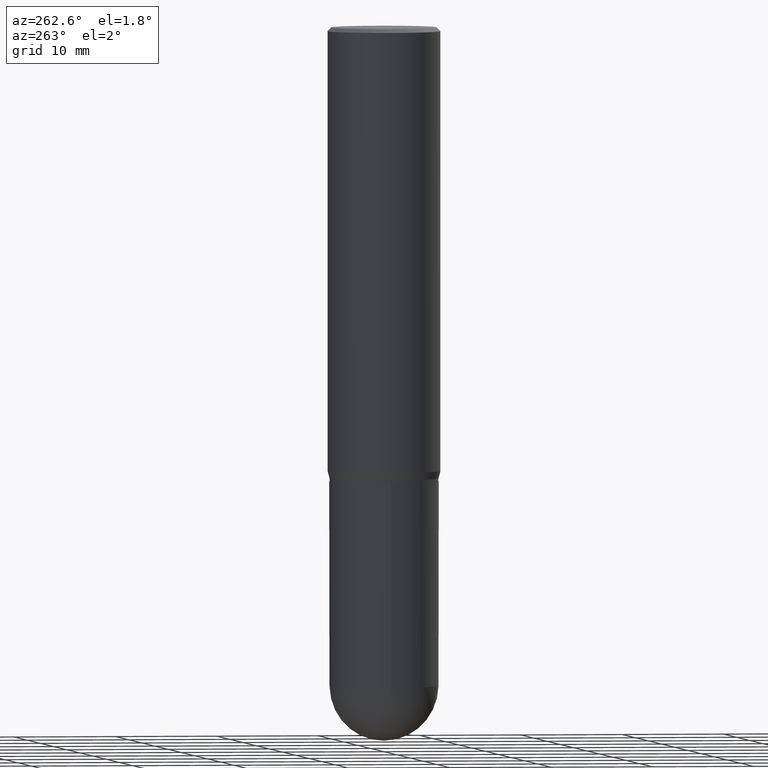
[diagram: clean part render]
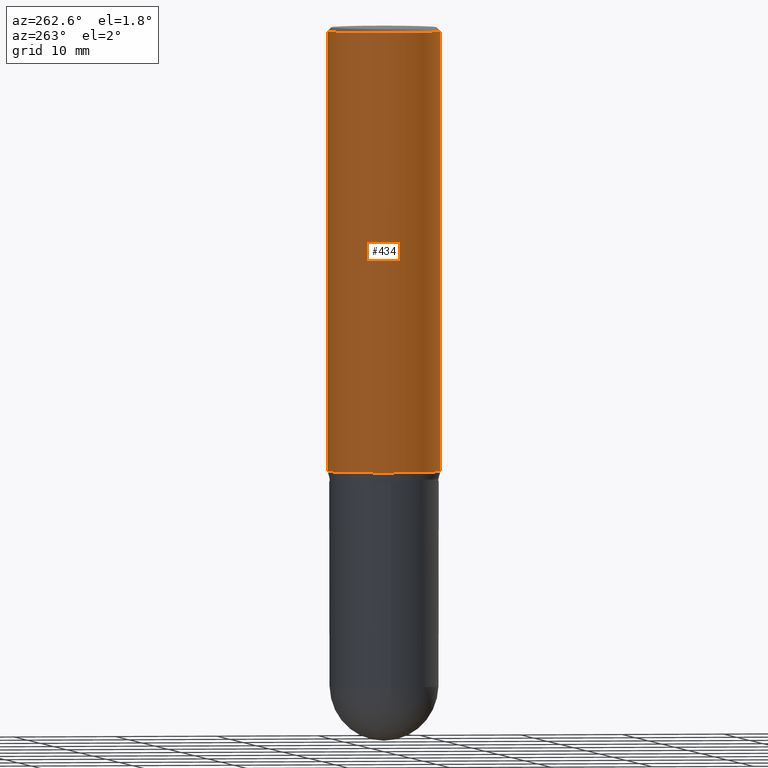
[diagram: same view with one face highlighted and labeled with its STEP entity id]
A machine part, auxiliary view. The second image highlights one B-rep face of the part: STEP entity #434.
In plain terms, the highlighted cylindrical surface (partial cylindrical patch) has radius 5.5562 mm, axis along (-0, 0, 1).
Its self-contained STEP definition (entity closure, byte-faithful):
#7 = CARTESIAN_POINT ( 'NONE',  ( 4.183510219591112166E-29, -5.974138999193196321E-15, -1.710890003700962669 ) ) ;
#25 = LINE ( 'NONE', #495, #220 ) ;
#30 = AXIS2_PLACEMENT_3D ( 'NONE', #401, #204, #360 ) ;
#66 = DIRECTION ( 'NONE',  ( -2.445224538422357859E-29, 3.491831144182302653E-15, 1.000000000000000000 ) ) ;
#82 = CARTESIAN_POINT ( 'NONE',  ( -1.527523085743870449E-15, -0.2187500000000000000, 7.638380627898786315E-16 ) ) ;
#90 = EDGE_CURVE ( 'NONE', #419, #378, #101, .T. ) ;
#97 = ORIENTED_EDGE ( 'NONE', *, *, #402, .F. ) ;
#101 = CIRCLE ( 'NONE', #30, 0.2187500000000000000 ) ;
#122 = EDGE_CURVE ( 'NONE', #408, #378, #475, .T. ) ;
#166 = DIRECTION ( 'NONE',  ( -6.982962677686265133E-15, -1.000000000000000000, 3.491831144182302259E-15 ) ) ;
#181 = CARTESIAN_POINT ( 'NONE',  ( -1.527523085743828442E-15, -0.2187500000000059397, -1.710890003700962003 ) ) ;
#191 = ORIENTED_EDGE ( 'NONE', *, *, #122, .T. ) ;
#192 = EDGE_CURVE ( 'NONE', #343, #408, #300, .T. ) ;
#204 = DIRECTION ( 'NONE',  ( -2.445224538422357859E-29, 3.491831144182302259E-15, 1.000000000000000000 ) ) ;
#216 = CYLINDRICAL_SURFACE ( 'NONE', #287, 0.2187500000000000000 ) ;
#220 = VECTOR ( 'NONE', #66, 39.37007874015748143 ) ;
#264 = ORIENTED_EDGE ( 'NONE', *, *, #90, .F. ) ;
#286 = DIRECTION ( 'NONE',  ( -2.445224538422357859E-29, 3.491831144182302259E-15, 1.000000000000000000 ) ) ;
#287 = AXIS2_PLACEMENT_3D ( 'NONE', #376, #494, #166 ) ;
#292 = FACE_OUTER_BOUND ( 'NONE', #294, .T. ) ;
#294 = EDGE_LOOP ( 'NONE', ( #97, #469, #191, #264 ) ) ;
#300 = CIRCLE ( 'NONE', #307, 0.2187500000000000000 ) ;
#307 = AXIS2_PLACEMENT_3D ( 'NONE', #7, #286, #333 ) ;
#333 = DIRECTION ( 'NONE',  ( -6.982962677686265133E-15, -1.000000000000000000, 3.746534391310989557E-15 ) ) ;
#343 = VERTEX_POINT ( 'NONE', #372 ) ;
#360 = DIRECTION ( 'NONE',  ( -6.982962677686265133E-15, -1.000000000000000000, 3.492862791899308071E-15 ) ) ;
#361 = VECTOR ( 'NONE', #396, 39.37007874015748143 ) ;
#372 = CARTESIAN_POINT ( 'NONE',  ( 1.554312234475260769E-15, 0.2187499999999940603, -1.710890003700963558 ) ) ;
#376 = CARTESIAN_POINT ( 'NONE',  ( 0.000000000000000000, 0.000000000000000000, 0.000000000000000000 ) ) ;
#378 = VERTEX_POINT ( 'NONE', #485 ) ;
#396 = DIRECTION ( 'NONE',  ( -2.445224538422357859E-29, 3.491831144182302653E-15, 1.000000000000000000 ) ) ;
#401 = CARTESIAN_POINT ( 'NONE',  ( 3.667836807633575149E-31, -5.237746716273508633E-17, -0.01500000000000015730 ) ) ;
#402 = EDGE_CURVE ( 'NONE', #343, #419, #25, .T. ) ;
#408 = VERTEX_POINT ( 'NONE', #181 ) ;
#417 = CARTESIAN_POINT ( 'NONE',  ( 1.554312234475260966E-15, 0.2187499999999999167, -0.01500000000000092232 ) ) ;
#419 = VERTEX_POINT ( 'NONE', #417 ) ;
#434 = ADVANCED_FACE ( 'NONE', ( #292 ), #216, .T. ) ;
#469 = ORIENTED_EDGE ( 'NONE', *, *, #192, .T. ) ;
#475 = LINE ( 'NONE', #82, #361 ) ;
#485 = CARTESIAN_POINT ( 'NONE',  ( -1.527523085743870054E-15, -0.2187500000000000555, -0.01499999999999939403 ) ) ;
#494 = DIRECTION ( 'NONE',  ( -2.445224538422357859E-29, 3.491831144182302259E-15, 1.000000000000000000 ) ) ;
#495 = CARTESIAN_POINT ( 'NONE',  ( 1.554312234475218762E-15, 0.2187500000000000000, -7.638380627898786315E-16 ) ) ;